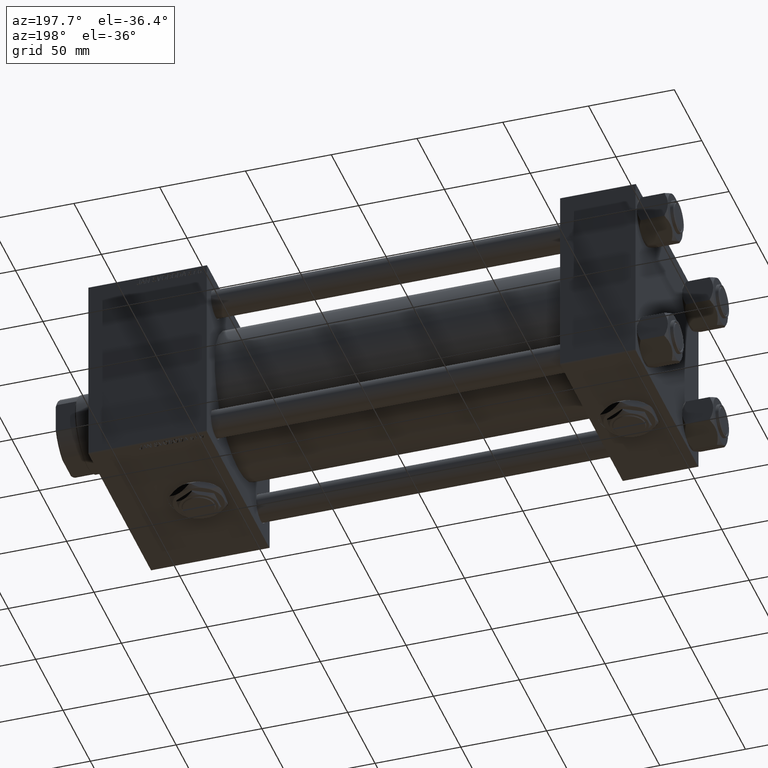
[diagram: clean part render]
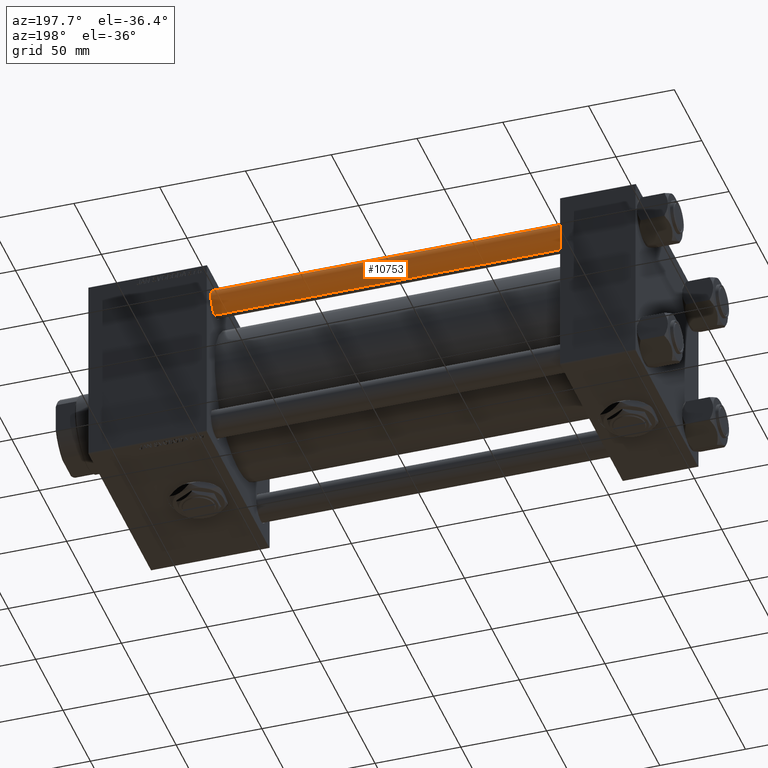
[diagram: same view with one face highlighted and labeled with its STEP entity id]
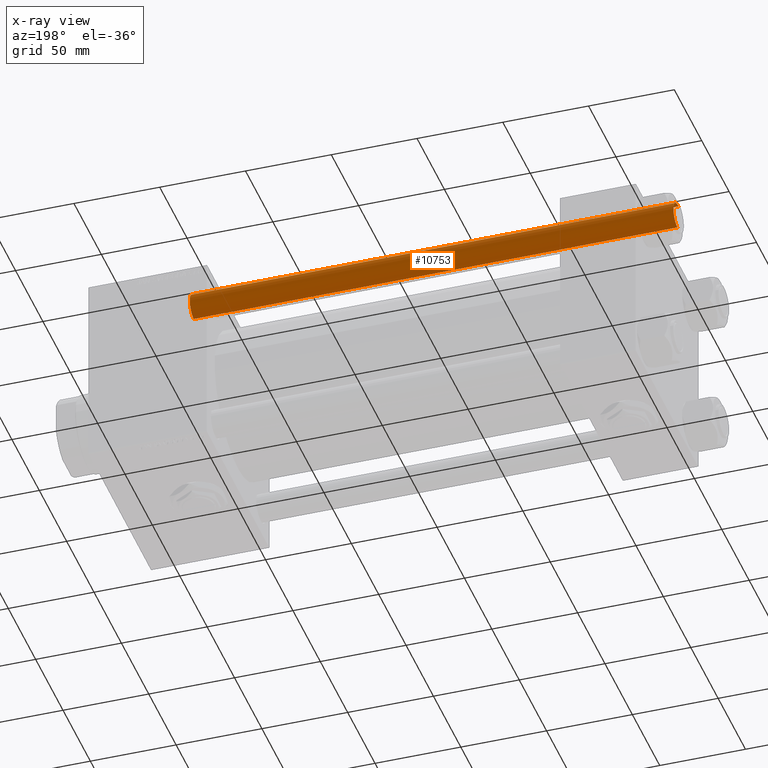
[diagram: x-ray of the same camera — body ghosted, the highlighted face saturated]
A machine part, auxiliary view. The second image highlights one B-rep face of the part: STEP entity #10753.
The next image is the same camera in x-ray: the body ghosted, the highlighted face saturated — about 0% of this face is hidden behind the body in this view.
In plain terms, the highlighted cylindrical surface (edge-blend (fillet) strip) has radius 8 mm, axis along (-1, 0, 0).
Its self-contained STEP definition (entity closure, byte-faithful):
#564 = CARTESIAN_POINT ( 'NONE',  ( 8.000000000000000000, 9.797174393178825657E-16, 0.5000000000000004441 ) ) ;
#906 = LINE ( 'NONE', #26041, #34677 ) ;
#1818 = CARTESIAN_POINT ( 'NONE',  ( 0.000000000000000000, 0.000000000000000000, 0.5000000000000004441 ) ) ;
#4916 = CARTESIAN_POINT ( 'NONE',  ( -8.000000000000000000, 0.000000000000000000, 282.5000000000000000 ) ) ;
#5193 = DIRECTION ( 'NONE',  ( -0.000000000000000000, -0.000000000000000000, -1.000000000000000000 ) ) ;
#8418 = AXIS2_PLACEMENT_3D ( 'NONE', #21054, #8491, #41111 ) ;
#8491 = DIRECTION ( 'NONE',  ( 0.000000000000000000, 0.000000000000000000, -1.000000000000000000 ) ) ;
#10204 = DIRECTION ( 'NONE',  ( -0.000000000000000000, -0.000000000000000000, -1.000000000000000000 ) ) ;
#10720 = LINE ( 'NONE', #46843, #48256 ) ;
#10753 = ADVANCED_FACE ( 'NONE', ( #36509 ), #48542, .T. ) ;
#10819 = CIRCLE ( 'NONE', #47546, 8.000000000000000000 ) ;
#12164 = CARTESIAN_POINT ( 'NONE',  ( 0.000000000000000000, 0.000000000000000000, 283.0000000000000000 ) ) ;
#13083 = ORIENTED_EDGE ( 'NONE', *, *, #45338, .F. ) ;
#14414 = VERTEX_POINT ( 'NONE', #42845 ) ;
#15616 = DIRECTION ( 'NONE',  ( -0.000000000000000000, -0.000000000000000000, 1.000000000000000000 ) ) ;
#17550 = EDGE_CURVE ( 'NONE', #14414, #34293, #906, .T. ) ;
#21054 = CARTESIAN_POINT ( 'NONE',  ( 0.000000000000000000, 0.000000000000000000, 282.5000000000000000 ) ) ;
#25199 = ORIENTED_EDGE ( 'NONE', *, *, #51605, .T. ) ;
#25695 = ORIENTED_EDGE ( 'NONE', *, *, #26757, .T. ) ;
#26041 = CARTESIAN_POINT ( 'NONE',  ( 8.000000000000000000, 9.797174393178825657E-16, 283.0000000000000000 ) ) ;
#26757 = EDGE_CURVE ( 'NONE', #34015, #14414, #28031, .T. ) ;
#27175 = EDGE_LOOP ( 'NONE', ( #25695, #48696, #25199, #13083 ) ) ;
#28031 = CIRCLE ( 'NONE', #8418, 8.000000000000000000 ) ;
#28205 = DIRECTION ( 'NONE',  ( -1.000000000000000000, 0.000000000000000000, 0.000000000000000000 ) ) ;
#30644 = CARTESIAN_POINT ( 'NONE',  ( -8.000000000000000000, 0.000000000000000000, 0.5000000000000004441 ) ) ;
#34015 = VERTEX_POINT ( 'NONE', #4916 ) ;
#34293 = VERTEX_POINT ( 'NONE', #564 ) ;
#34677 = VECTOR ( 'NONE', #5193, 1000.000000000000000 ) ;
#36509 = FACE_OUTER_BOUND ( 'NONE', #27175, .T. ) ;
#41111 = DIRECTION ( 'NONE',  ( 1.000000000000000000, 0.000000000000000000, 0.000000000000000000 ) ) ;
#42246 = AXIS2_PLACEMENT_3D ( 'NONE', #12164, #52816, #28205 ) ;
#42845 = CARTESIAN_POINT ( 'NONE',  ( 8.000000000000000000, 9.797174393178825657E-16, 282.5000000000000000 ) ) ;
#45338 = EDGE_CURVE ( 'NONE', #34015, #52841, #10720, .T. ) ;
#46843 = CARTESIAN_POINT ( 'NONE',  ( -8.000000000000000000, 0.000000000000000000, 283.0000000000000000 ) ) ;
#47546 = AXIS2_PLACEMENT_3D ( 'NONE', #1818, #15616, #52514 ) ;
#48256 = VECTOR ( 'NONE', #10204, 1000.000000000000000 ) ;
#48542 = CYLINDRICAL_SURFACE ( 'NONE', #42246, 8.000000000000000000 ) ;
#48696 = ORIENTED_EDGE ( 'NONE', *, *, #17550, .T. ) ;
#51605 = EDGE_CURVE ( 'NONE', #34293, #52841, #10819, .T. ) ;
#52514 = DIRECTION ( 'NONE',  ( 1.000000000000000000, 0.000000000000000000, 0.000000000000000000 ) ) ;
#52816 = DIRECTION ( 'NONE',  ( -0.000000000000000000, -0.000000000000000000, -1.000000000000000000 ) ) ;
#52841 = VERTEX_POINT ( 'NONE', #30644 ) ;